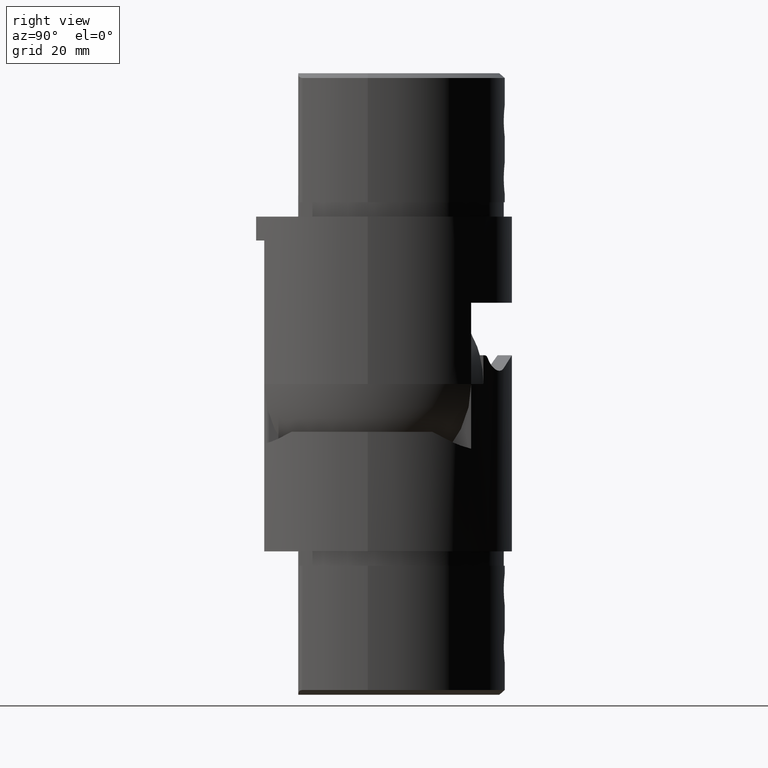
[diagram: clean part render]
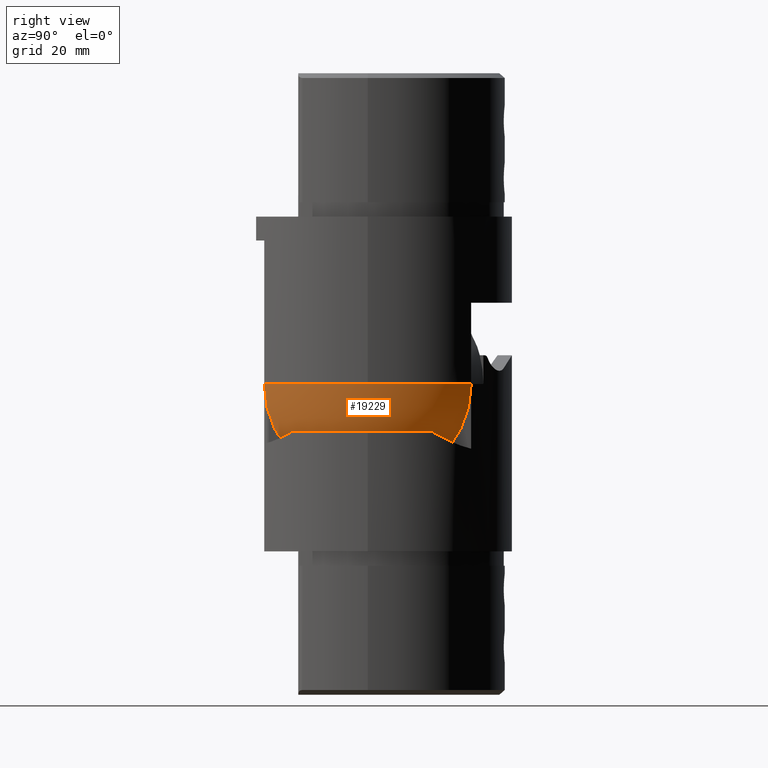
[diagram: same view with one face highlighted and labeled with its STEP entity id]
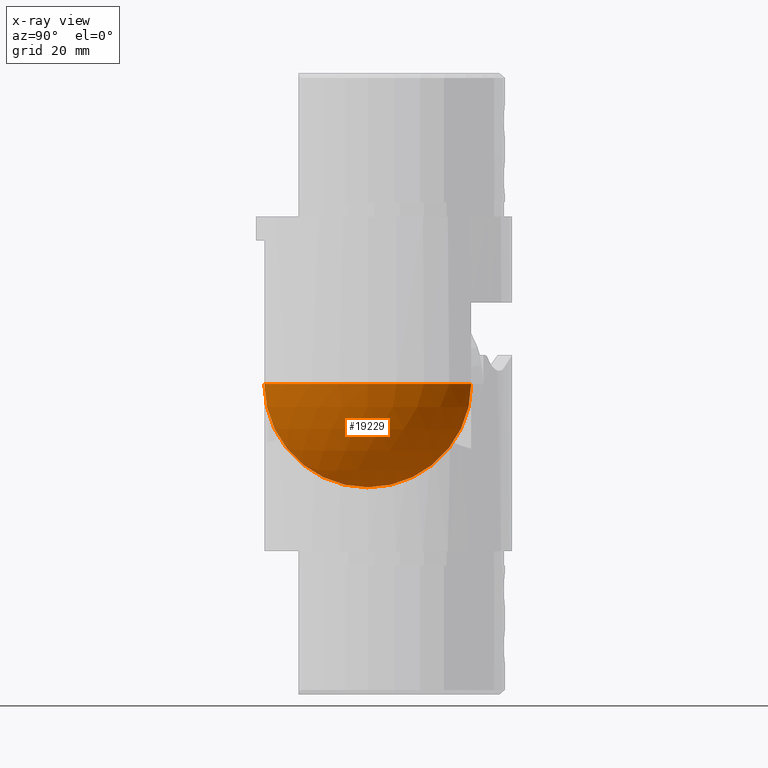
[diagram: x-ray of the same camera — body ghosted, the highlighted face saturated]
A machine part, right view. The second image highlights one B-rep face of the part: STEP entity #19229.
The next image is the same camera in x-ray: the body ghosted, the highlighted face saturated — about 0% of this face is hidden behind the body in this view.
In plain terms, the highlighted spherical surface has radius 30.15 mm.
Its self-contained STEP definition (entity closure, byte-faithful):
#2229 = EDGE_LOOP ( 'NONE', ( #28818, #18312, #2419 ) ) ;
#2383 = VERTEX_POINT ( 'NONE', #15043 ) ;
#2419 = ORIENTED_EDGE ( 'NONE', *, *, #10290, .F. ) ;
#2815 = DIRECTION ( 'NONE',  ( 1.000000000000000000, 0.000000000000000000, 3.452186021844392809E-15 ) ) ;
#3926 = CIRCLE ( 'NONE', #18538, 21.63382767796761641 ) ;
#5055 = DIRECTION ( 'NONE',  ( -3.491481338843133355E-15, 0.000000000000000000, 1.000000000000000000 ) ) ;
#5765 = SPHERICAL_SURFACE ( 'NONE', #17084, 30.14999999999999858 ) ;
#6148 = DIRECTION ( 'NONE',  ( 1.000000000000000000, 0.000000000000000000, 3.452186021844392414E-15 ) ) ;
#8598 = DIRECTION ( 'NONE',  ( 3.452186021844392414E-15, 0.000000000000000000, -1.000000000000000000 ) ) ;
#9617 = DIRECTION ( 'NONE',  ( 2.084828031672394149E-15, -1.000000000000000000, 0.000000000000000000 ) ) ;
#10290 = EDGE_CURVE ( 'NONE', #2383, #18216, #12960, .T. ) ;
#11070 = CARTESIAN_POINT ( 'NONE',  ( 21.00000000000000000, 21.63382767796766259, -32.99999999999992895 ) ) ;
#12696 = VERTEX_POINT ( 'NONE', #11070 ) ;
#12960 = CIRCLE ( 'NONE', #29184, 30.14999999999999503 ) ;
#13892 = CARTESIAN_POINT ( 'NONE',  ( 0.000000000000000000, 0.000000000000000000, -33.00000000000000711 ) ) ;
#14451 = CARTESIAN_POINT ( 'NONE',  ( 0.000000000000000000, 0.000000000000000000, -33.00000000000000711 ) ) ;
#14516 = CARTESIAN_POINT ( 'NONE',  ( 21.00000000000004619, 4.471143231985799286E-14, -33.00000000000000711 ) ) ;
#15043 = CARTESIAN_POINT ( 'NONE',  ( 21.00000000000009237, -21.63382767796757378, -33.00000000000000711 ) ) ;
#15262 = FACE_OUTER_BOUND ( 'NONE', #2229, .T. ) ;
#15641 = CARTESIAN_POINT ( 'NONE',  ( -6.938893903907228378E-15, 0.000000000000000000, -33.00000000000000711 ) ) ;
#16236 = DIRECTION ( 'NONE',  ( 1.000000000000000000, 0.000000000000000000, 3.452186021844392809E-15 ) ) ;
#17084 = AXIS2_PLACEMENT_3D ( 'NONE', #15641, #8598, #6148 ) ;
#18216 = VERTEX_POINT ( 'NONE', #22064 ) ;
#18312 = ORIENTED_EDGE ( 'NONE', *, *, #24511, .F. ) ;
#18538 = AXIS2_PLACEMENT_3D ( 'NONE', #14516, #21208, #9617 ) ;
#19229 = ADVANCED_FACE ( 'NONE', ( #15262 ), #5765, .T. ) ;
#20898 = DIRECTION ( 'NONE',  ( -3.491481338843133355E-15, 0.000000000000000000, 1.000000000000000000 ) ) ;
#21208 = DIRECTION ( 'NONE',  ( -1.000000000000000000, -2.129115824755137314E-15, 0.000000000000000000 ) ) ;
#22064 = CARTESIAN_POINT ( 'NONE',  ( 30.14999999999999503, 0.000000000000000000, -32.99999999999990763 ) ) ;
#24511 = EDGE_CURVE ( 'NONE', #18216, #12696, #26912, .T. ) ;
#26645 = EDGE_CURVE ( 'NONE', #12696, #2383, #3926, .T. ) ;
#26912 = CIRCLE ( 'NONE', #27586, 30.14999999999999503 ) ;
#27586 = AXIS2_PLACEMENT_3D ( 'NONE', #13892, #20898, #16236 ) ;
#28818 = ORIENTED_EDGE ( 'NONE', *, *, #26645, .F. ) ;
#29184 = AXIS2_PLACEMENT_3D ( 'NONE', #14451, #5055, #2815 ) ;